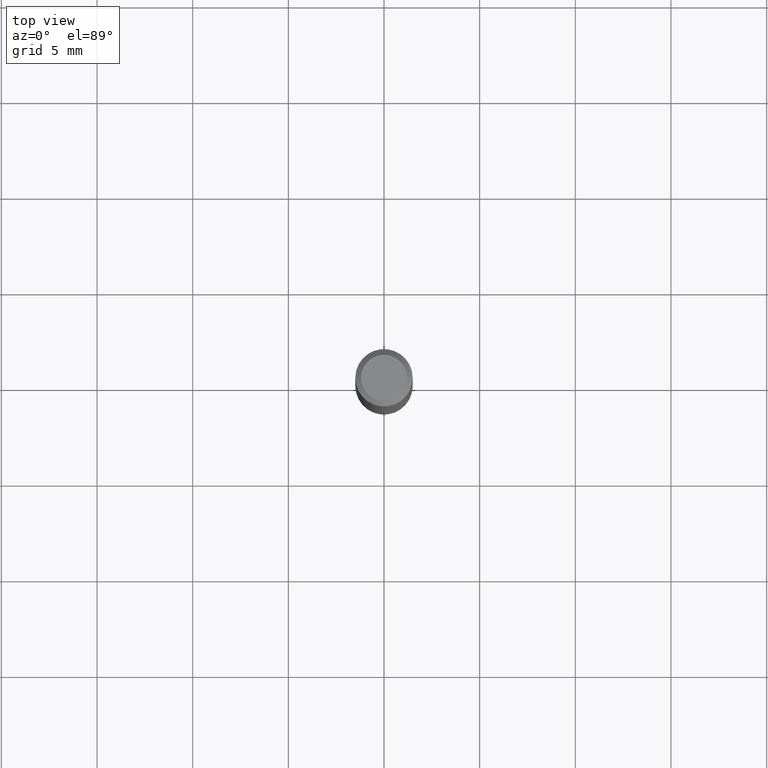
[diagram: clean part render]
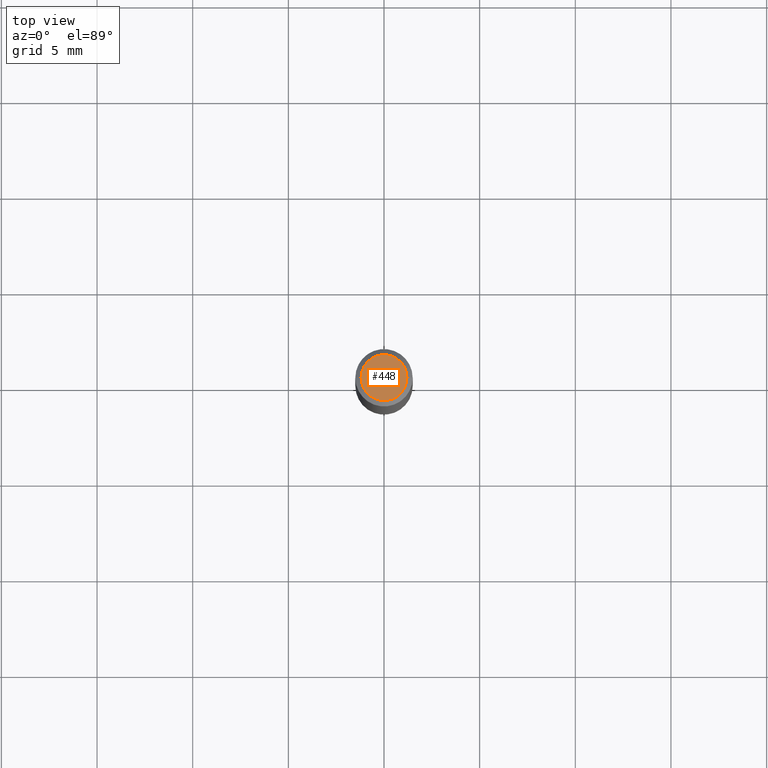
[diagram: same view with one face highlighted and labeled with its STEP entity id]
A machine part, top view. The second image highlights one B-rep face of the part: STEP entity #448.
In plain terms, the highlighted planar face has unit normal (0, -0, -1).
Its self-contained STEP definition (entity closure, byte-faithful):
#33 = DIRECTION ( 'NONE',  ( -2.445468806185136597E-29, 3.491481338843145583E-15, 1.000000000000000000 ) ) ;
#70 = ORIENTED_EDGE ( 'NONE', *, *, #182, .T. ) ;
#138 = EDGE_LOOP ( 'NONE', ( #70, #219 ) ) ;
#147 = CARTESIAN_POINT ( 'NONE',  ( -0.04724000000000000421, 3.504923541997677355E-16, -3.380025165670481712E-19 ) ) ;
#177 = CARTESIAN_POINT ( 'NONE',  ( 8.265746106709734507E-48, -1.180129479067563789E-33, -3.380025165646692144E-19 ) ) ;
#182 = EDGE_CURVE ( 'NONE', #295, #318, #468, .T. ) ;
#199 = CARTESIAN_POINT ( 'NONE',  ( 4.132873053354867254E-48, -5.900647395337818946E-34, -1.690012582823346072E-19 ) ) ;
#210 = AXIS2_PLACEMENT_3D ( 'NONE', #177, #33, #372 ) ;
#219 = ORIENTED_EDGE ( 'NONE', *, *, #394, .T. ) ;
#270 = AXIS2_PLACEMENT_3D ( 'NONE', #314, #322, #321 ) ;
#277 = DIRECTION ( 'NONE',  ( 2.438088387897960049E-29, -3.491481338843145188E-15, -1.000000000000000000 ) ) ;
#295 = VERTEX_POINT ( 'NONE', #147 ) ;
#314 = CARTESIAN_POINT ( 'NONE',  ( 8.265746106709734507E-48, -1.180129479067563789E-33, -3.380025165646692144E-19 ) ) ;
#318 = VERTEX_POINT ( 'NONE', #387 ) ;
#321 = DIRECTION ( 'NONE',  ( 1.000000000000000000, -6.982962677686266711E-15, 4.876185090822587894E-29 ) ) ;
#322 = DIRECTION ( 'NONE',  ( -2.445468806185136597E-29, 3.491481338843145583E-15, 1.000000000000000000 ) ) ;
#334 = AXIS2_PLACEMENT_3D ( 'NONE', #199, #277, #420 ) ;
#372 = DIRECTION ( 'NONE',  ( 1.000000000000000000, -6.982962677686266711E-15, 4.876185090822587894E-29 ) ) ;
#378 = PLANE ( 'NONE',  #334 ) ;
#387 = CARTESIAN_POINT ( 'NONE',  ( 0.04724000000000000421, -3.852183633974369345E-16, -3.380025165621689721E-19 ) ) ;
#394 = EDGE_CURVE ( 'NONE', #318, #295, #475, .T. ) ;
#420 = DIRECTION ( 'NONE',  ( -1.000000000000000000, 6.982962677686265922E-15, -4.876176775795935793E-29 ) ) ;
#448 = ADVANCED_FACE ( 'NONE', ( #457 ), #378, .F. ) ;
#457 = FACE_OUTER_BOUND ( 'NONE', #138, .T. ) ;
#468 = CIRCLE ( 'NONE', #210, 0.04724000000000000421 ) ;
#475 = CIRCLE ( 'NONE', #270, 0.04724000000000000421 ) ;